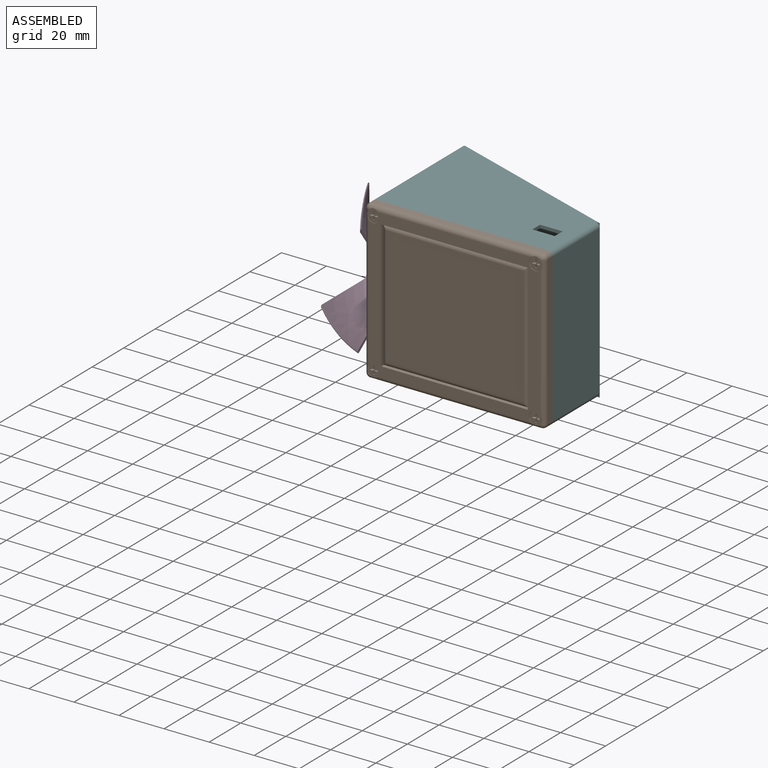
[diagram: assembled view]
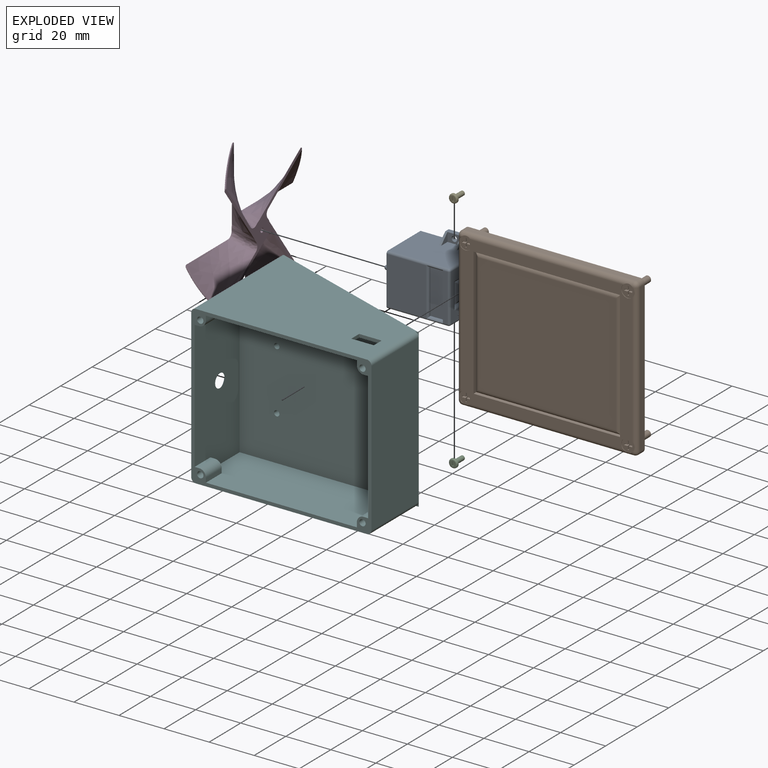
[diagram: exploded view]
GUIDED TOUR — MATED ASSEMBLY WITH SUBASSEMBLIES (Onshape document ab6bb87379f36e90b75c5dd7, AutoMate assembly ab6bb87379f36e90b75c5dd7_9b15f9d7cb4c715bf9bfc902_723ae6bca913845a0ec390ba_default)

This assembly has 15 component occurrences arranged in 6 top-level units: 4 individual components plus 2 subassemblies (S0, S1). The tour has two levels: first the top level, where each subassembly is treated as one rigid unit; then each subassembly is toured internally in its own section (nesting deeper than one subassembly level is flattened into its subassembly's section).

Components are labeled P0..P14 across the whole record; subassembly units are labeled S0..S1. A mate is a constraint between two units; its type names the relative motion it leaves free:
  FASTENED — locks the two components together rigidly (no relative motion).
Axis/direction vectors are unit vectors and 'through' points are millimeter coordinates, both in the assembly's world frame.

TOP-LEVEL MATES (between units; each subassembly's internal mates are listed in its own section)
  1. FASTENED "Fastened 1": S0 <-> P9, direction (0.000, 1.000, 0.000) through (-19.87, 3.13, -12.89) mm
  2. FASTENED "Fastened 3": P5 <-> S0, direction (0.000, 1.000, 0.000) through (-19.87, 0.93, 14.11) mm
  3. FASTENED "Fastened 6": P4 <-> S0, direction (1.000, 0.000, 0.000) through (-37.87, -9.42, 0.61) mm
  4. FASTENED "Fastened 4": P3 <-> S0, direction (0.000, 1.000, 0.000) through (-19.87, 0.93, -12.89) mm

TOP-LEVEL ASSEMBLY ORDER
  1. S0 — the base component [order heuristic]
  2. S1 — core [order heuristic]
  3. P9 — core [order heuristic]
  4. P4 [order verified]
  5. P5 [order verified]
  6. P3 [order verified]
(P4 verified with a relaxed clearance tolerance: the source model stores slight part interference there.)
Order-tag legend:
  [order verified] — this step's position reverses a verified removal order: the component was checked to insert without passing through the ones already placed.
  [order heuristic] — the first 3 components form the assembly's core: parts whose collision-free extraction could not be verified, listed in mate-graph order.

Of the 15 component occurrences, 7 carry the full construction recipe — the FeatureScript program that regenerates the part's solid from scratch; the rest are supplied as boundary geometry only. Each toured unit is shown spotlighted twice — assembled, then exploded with a leader line back to its socket (green = recipe-attached component, orange = geometry-only, blue = subassembly unit; the rest desaturated gray).
NOTE — document 2 of 2 of this assembly tour. The two overview renders and the header above are repeated from document 1; the component sections below continue where the previous document stopped.
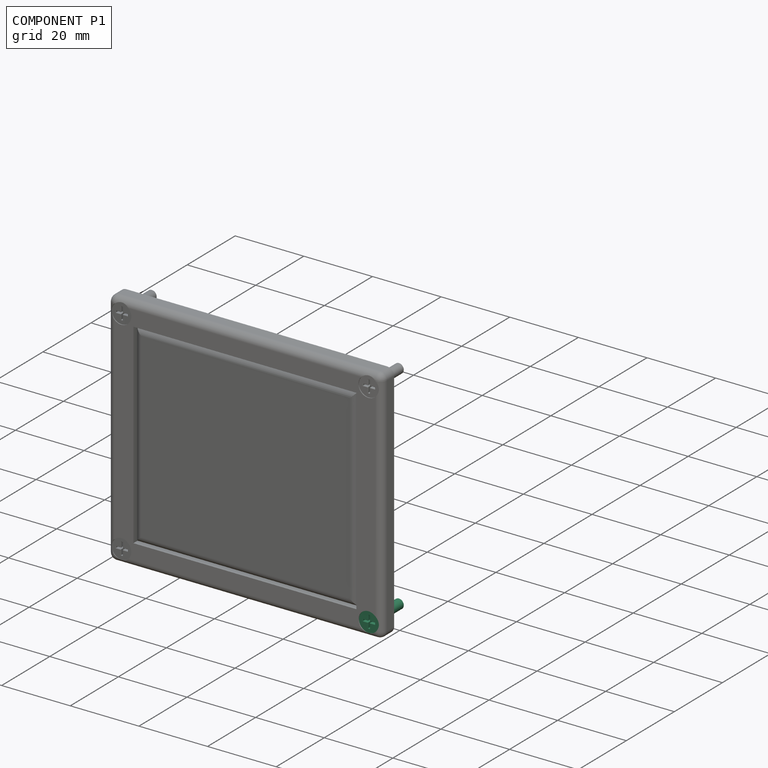
[diagram: component P1 — assembled]
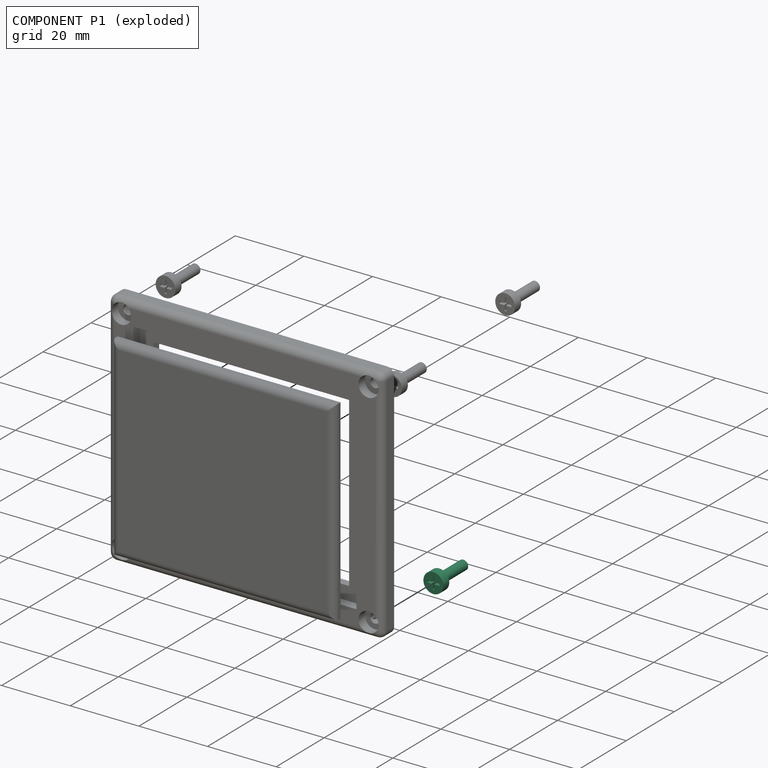
[diagram: component P1 — exploded]
COMPONENT P1 — recipe-attached (CADFS 00138052, mesh-verified: the recipe's output STEP matches this component's geometry to below the mesh-comparison resolution (tessellation chordal tolerance ~0.0224 mm)).
Held by: FASTENED mate "Fastened 4" to P6; FASTENED mate "Fastened 4" to P6.
Construction recipe (FeatureScript — the CAD program that rebuilds this solid; sketch coordinates are in the units given by the * unit suffixes, e.g. mm):

FeatureScript 2581;
import(path : "onshape/std/geometry.fs", version : "2581.0");
import(path : "onshape/std/common.fs", version : "2581.0");
const mm = millimeter;
const VERTEX = EntityType.VERTEX;
const EDGE = EntityType.EDGE;
const FACE = EntityType.FACE;
const BODY = EntityType.BODY;
function v(x, y){return vector(x, y);}
function OD(order){return orderDisambiguation(order);}
function OSD(set){return originalSetDisambiguation(set);}
function TD(topology){return topologyDisambiguation(topology);}
function TDD(query){return trueDependencyDisambiguation(query);}
function sQuery(a, b, c) {return sketchEntityQuery(a, b, c);}

annotation { "Feature Type Name" : "Feature", "Feature Type Description" : "" }
export const myFeature = defineFeature(function(context is Context, id is Id, definition is map)
    precondition{}
    {
        {
            var Q0;
            Q0=qCreatedBy(makeId("Front.planeOp"),FACE);
            var sketch = newSketch(context, id + "F0", { "sketchPlane" : qUnion([Q0])});
            skCircle(sketch, "E0", {"center": v(0, 0) * mm, "radius": 1.4 * mm});
            skSolve(sketch);
        }
        {
            var Q0;
            Q0=makeQuery(id+"F0.imprint","IMPRINT",FACE,{"disambiguationData":[TD([[makeQuery(id+"F0.imprint","IMPRINT",EDGE,{"derivedFrom":sQuery(id+"F0.wireOp",EDGE,"E0")}),1.0]])]});
            extrude(context, id + "F1", {"entities" : qUnion([Q0]), "depth" : 10 * mm});
        }
        {
            var Q0;
            Q0=makeQuery(id+"F1.opExtrude","CAP_FACE",FACE,{"disambiguationData":[OSD([sQuery(id+"F0.wireOp",EDGE,"E0")])],"isStart":false});
            cPlane(context, id + "F2", {"entities" : qUnion([Q0]), "cplaneType" : CPlaneType.OFFSET, "offset" : 0 * mm, "width" : 150 * mm, "height" : 150 * mm});
        }
        {
            var Q0;
            Q0=qCreatedBy(id+"F2.planeOp",FACE);
            var sketch = newSketch(context, id + "F3", { "sketchPlane" : qUnion([Q0])});
            skCircle(sketch, "E1", {"center": v(0, 0) * mm, "radius": 2.9 * mm});
            skLineSegment(sketch, "E2.bottom", {"start": v(0.25, -1.75) * mm, "end": v(-0.25, -1.75) * mm});
            skLineSegment(sketch, "E2.top", {"start": v(0.25, 1.75) * mm, "end": v(-0.25, 1.75) * mm});
            skLineSegment(sketch, "E2.left", {"start": v(0.25, -1.75) * mm, "end": v(0.25, 1.75) * mm});
            skLineSegment(sketch, "E2.right", {"start": v(-0.25, -1.75) * mm, "end": v(-0.25, 1.75) * mm});
            skLineSegment(sketch, "E3.bottom", {"start": v(1.75, -0.25) * mm, "end": v(-1.75, -0.25) * mm});
            skLineSegment(sketch, "E3.top", {"start": v(1.75, 0.25) * mm, "end": v(-1.75, 0.25) * mm});
            skLineSegment(sketch, "E3.left", {"start": v(1.75, -0.25) * mm, "end": v(1.75, 0.25) * mm});
            skLineSegment(sketch, "E3.right", {"start": v(-1.75, -0.25) * mm, "end": v(-1.75, 0.25) * mm});
            skSolve(sketch);
        }
        {
            var Q0;
            Q0=makeQuery(id+"F3.imprint","IMPRINT",FACE,{"disambiguationData":[TD([[makeQuery(id+"F3.imprint","IMPRINT",EDGE,{"derivedFrom":sQuery(id+"F3.wireOp",EDGE,"E1")}),1.0]])]});
            extrude(context, id + "F4", {"entities" : qUnion([Q0]), "operationType" : NewBodyOperationType.ADD, "depth" : 2.5 * mm});
        }
        {
            var Q0;
            {var subQ0=sQuery(id+"F3.wireOp",EDGE,"E3.bottom");var subQ1=sQuery(id+"F3.wireOp",EDGE,"E2.left");var subQ2=makeQuery(id+"F3.imprint","INTERSECT",VERTEX,{"derivedFrom":[subQ1,subQ0]});Q0=makeQuery(id+"F3.imprint","IMPRINT",FACE,{"disambiguationData":[TD([[makeQuery(id+"F3.imprint","IMPRINT",EDGE,{"disambiguationData":[TD([[subQ2,-1.0]])],"derivedFrom":subQ1}),1.0]])]});}
            var Q1;
            {var subQ5=sQuery(id+"F3.wireOp",EDGE,"E3.right");Q1=makeQuery(id+"F3.imprint","IMPRINT",FACE,{"disambiguationData":[TD([[makeQuery(id+"F3.imprint","IMPRINT",EDGE,{"derivedFrom":subQ5}),-1.0]])]});}
            var Q2;
            {var subQ0=sQuery(id+"F3.wireOp",EDGE,"E2.bottom");Q2=makeQuery(id+"F3.imprint","IMPRINT",FACE,{"disambiguationData":[TD([[makeQuery(id+"F3.imprint","IMPRINT",EDGE,{"derivedFrom":subQ0}),-1.0]])]});}
            var Q3;
            {var subQ5=sQuery(id+"F3.wireOp",EDGE,"E3.left");Q3=makeQuery(id+"F3.imprint","IMPRINT",FACE,{"disambiguationData":[TD([[makeQuery(id+"F3.imprint","IMPRINT",EDGE,{"derivedFrom":subQ5}),1.0]])]});}
            var Q4;
            {var subQ0=sQuery(id+"F3.wireOp",EDGE,"E2.top");Q4=makeQuery(id+"F3.imprint","IMPRINT",FACE,{"disambiguationData":[TD([[makeQuery(id+"F3.imprint","IMPRINT",EDGE,{"derivedFrom":subQ0}),1.0]])]});}
            extrude(context, id + "F5", {"entities" : qUnion([Q0, Q1, Q2, Q3, Q4]), "operationType" : NewBodyOperationType.ADD, "depth" : 0.5 * mm});
        }
        {
            var Q0;
            {var subQ0=sQuery(id+"F3.wireOp",EDGE,"E2.right");Q0=makeQuery(id+"F4.opExtrude","CAP_EDGE",EDGE,{"disambiguationData":[OSD([subQ0]),TDD([makeQuery(id+"F3.imprint","IMPRINT",EDGE,{"disambiguationData":[TD([[makeQuery(id+"F3.imprint","INTERSECT",VERTEX,{"derivedFrom":[sQuery(id+"F3.wireOp",EDGE,"E2.top"),subQ0]}),1.0]])],"derivedFrom":subQ0})])],"isStart":false});}
            var Q1;
            {var subQ0=sQuery(id+"F3.wireOp",EDGE,"E3.top");Q1=makeQuery(id+"F4.opExtrude","CAP_EDGE",EDGE,{"disambiguationData":[OSD([subQ0]),TDD([makeQuery(id+"F3.imprint","IMPRINT",EDGE,{"disambiguationData":[TD([[makeQuery(id+"F3.imprint","INTERSECT",VERTEX,{"derivedFrom":[subQ0,sQuery(id+"F3.wireOp",EDGE,"E3.right")]}),1.0]])],"derivedFrom":subQ0})])],"isStart":false});}
            var Q2;
            {var subQ0=sQuery(id+"F3.wireOp",EDGE,"E3.bottom");Q2=makeQuery(id+"F4.opExtrude","CAP_EDGE",EDGE,{"disambiguationData":[OSD([subQ0]),TDD([makeQuery(id+"F3.imprint","IMPRINT",EDGE,{"disambiguationData":[TD([[makeQuery(id+"F3.imprint","INTERSECT",VERTEX,{"derivedFrom":[subQ0,sQuery(id+"F3.wireOp",EDGE,"E3.right")]}),1.0]])],"derivedFrom":subQ0})])],"isStart":false});}
            var Q3;
            {var subQ0=sQuery(id+"F3.wireOp",EDGE,"E2.right");Q3=makeQuery(id+"F4.opExtrude","CAP_EDGE",EDGE,{"disambiguationData":[OSD([subQ0]),TDD([makeQuery(id+"F3.imprint","IMPRINT",EDGE,{"disambiguationData":[TD([[makeQuery(id+"F3.imprint","INTERSECT",VERTEX,{"derivedFrom":[sQuery(id+"F3.wireOp",EDGE,"E2.bottom"),subQ0]}),-1.0]])],"derivedFrom":subQ0})])],"isStart":false});}
            var Q4;
            Q4=makeQuery(id+"F4.opExtrude","CAP_EDGE",EDGE,{"disambiguationData":[OSD([sQuery(id+"F3.wireOp",EDGE,"E3.right")])],"isStart":false});
            var Q5;
            {var subQ0=sQuery(id+"F3.wireOp",EDGE,"E2.left");Q5=makeQuery(id+"F4.opExtrude","CAP_EDGE",EDGE,{"disambiguationData":[OSD([subQ0]),TDD([makeQuery(id+"F3.imprint","IMPRINT",EDGE,{"disambiguationData":[TD([[makeQuery(id+"F3.imprint","INTERSECT",VERTEX,{"derivedFrom":[sQuery(id+"F3.wireOp",EDGE,"E2.bottom"),subQ0]}),-1.0]])],"derivedFrom":subQ0})])],"isStart":false});}
            var Q6;
            Q6=makeQuery(id+"F4.opExtrude","CAP_EDGE",EDGE,{"disambiguationData":[OSD([sQuery(id+"F3.wireOp",EDGE,"E2.bottom")])],"isStart":false});
            var Q7;
            {var subQ0=sQuery(id+"F3.wireOp",EDGE,"E3.bottom");Q7=makeQuery(id+"F4.opExtrude","CAP_EDGE",EDGE,{"disambiguationData":[OSD([subQ0]),TDD([makeQuery(id+"F3.imprint","IMPRINT",EDGE,{"disambiguationData":[TD([[makeQuery(id+"F3.imprint","INTERSECT",VERTEX,{"derivedFrom":[subQ0,sQuery(id+"F3.wireOp",EDGE,"E3.left")]}),-1.0]])],"derivedFrom":subQ0})])],"isStart":false});}
            var Q8;
            Q8=makeQuery(id+"F4.opExtrude","CAP_EDGE",EDGE,{"disambiguationData":[OSD([sQuery(id+"F3.wireOp",EDGE,"E3.left")])],"isStart":false});
            var Q9;
            {var subQ0=sQuery(id+"F3.wireOp",EDGE,"E2.left");Q9=makeQuery(id+"F4.opExtrude","CAP_EDGE",EDGE,{"disambiguationData":[OSD([subQ0]),TDD([makeQuery(id+"F3.imprint","IMPRINT",EDGE,{"disambiguationData":[TD([[makeQuery(id+"F3.imprint","INTERSECT",VERTEX,{"derivedFrom":[sQuery(id+"F3.wireOp",EDGE,"E2.top"),subQ0]}),1.0]])],"derivedFrom":subQ0})])],"isStart":false});}
            var Q10;
            Q10=makeQuery(id+"F4.opExtrude","CAP_EDGE",EDGE,{"disambiguationData":[OSD([sQuery(id+"F3.wireOp",EDGE,"E2.top")])],"isStart":false});
            var Q11;
            {var subQ0=sQuery(id+"F3.wireOp",EDGE,"E3.top");Q11=makeQuery(id+"F4.opExtrude","CAP_EDGE",EDGE,{"disambiguationData":[OSD([subQ0]),TDD([makeQuery(id+"F3.imprint","IMPRINT",EDGE,{"disambiguationData":[TD([[makeQuery(id+"F3.imprint","INTERSECT",VERTEX,{"derivedFrom":[subQ0,sQuery(id+"F3.wireOp",EDGE,"E3.left")]}),-1.0]])],"derivedFrom":subQ0})])],"isStart":false});}
            fillet(context, id + "F6", {"entities" : qUnion([Q0, Q1, Q2, Q3, Q4, Q5, Q6, Q7, Q8, Q9, Q10, Q11]), "radius" : 0.1 * mm, "tangentPropagation" : true, "allowEdgeOverflow" : false});
        }
    });
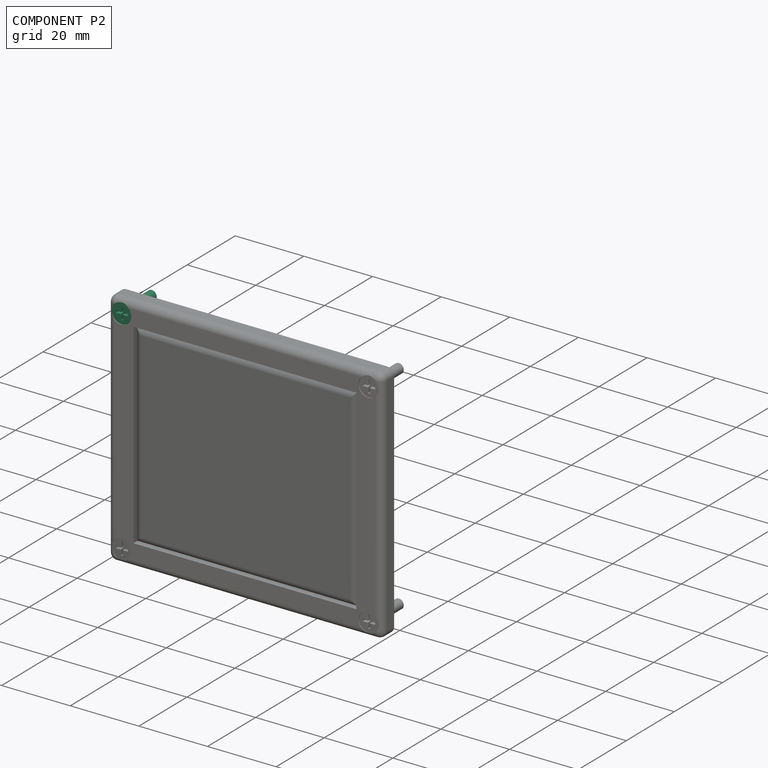
[diagram: component P2 — assembled]
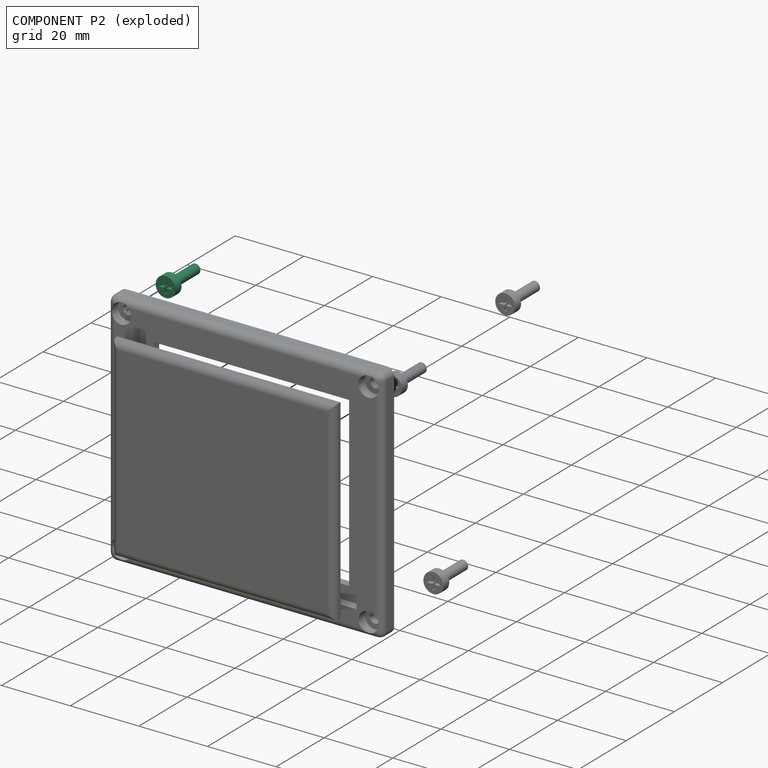
[diagram: component P2 — exploded]
COMPONENT P2 — same part as P1 (CADFS 00138052); its construction recipe is shown at P1.
Held by: FASTENED mate "Fastened 5" to P6; FASTENED mate "Fastened 5" to P6.
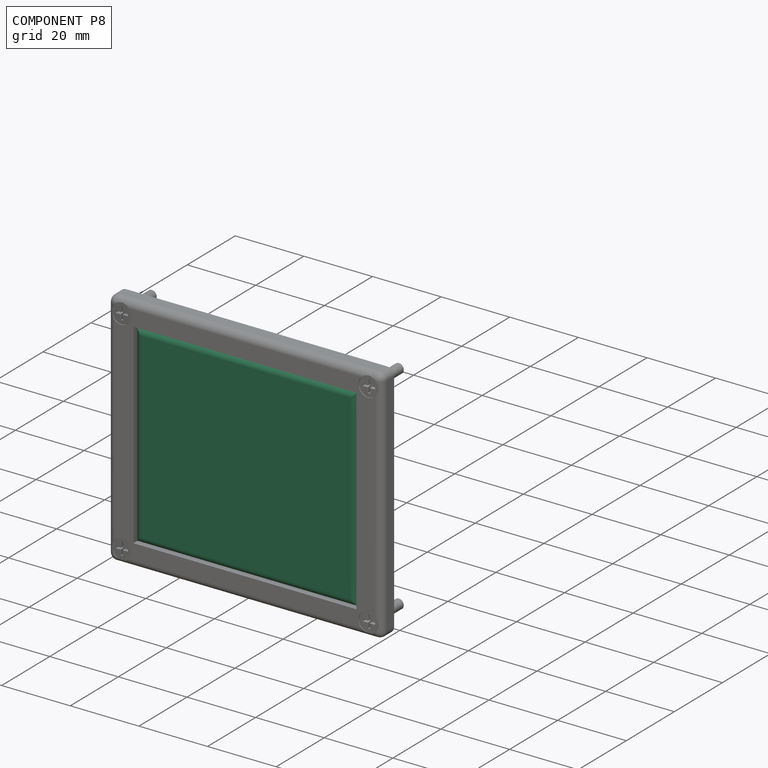
[diagram: component P8 — assembled]
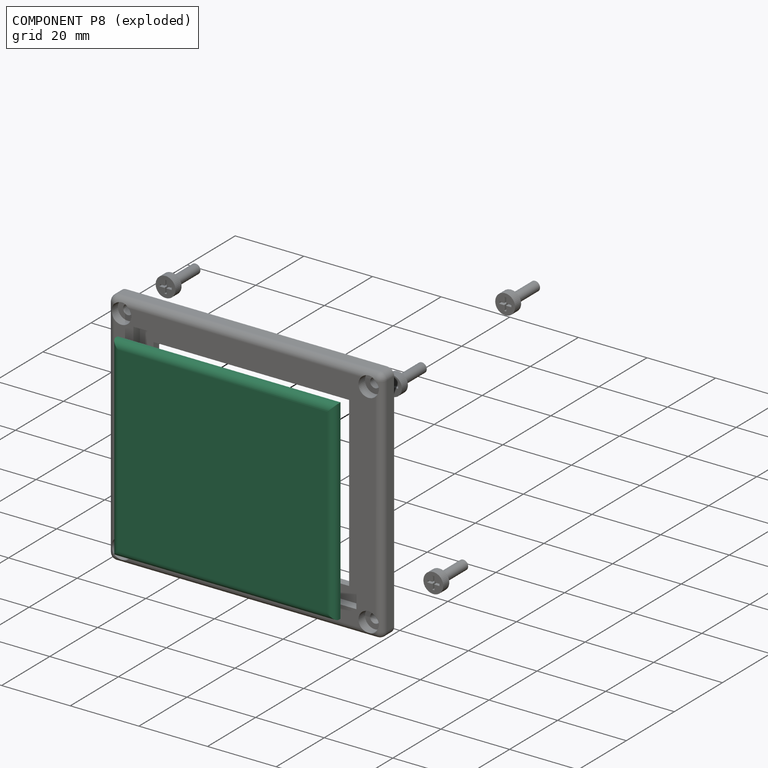
[diagram: component P8 — exploded]
COMPONENT P8 — recipe-attached (CADFS 00138053, mesh-verified: the recipe's output STEP matches this component's geometry to below the mesh-comparison resolution (tessellation chordal tolerance ~0.13 mm)).
Held by: FASTENED mate "Fastened 1" to P6; FASTENED mate "Fastened 1" to P6.
Construction recipe (FeatureScript — the CAD program that rebuilds this solid; sketch coordinates are in the units given by the * unit suffixes, e.g. mm):

FeatureScript 2581;
import(path : "onshape/std/geometry.fs", version : "2581.0");
import(path : "onshape/std/common.fs", version : "2581.0");
const mm = millimeter;
const VERTEX = EntityType.VERTEX;
const EDGE = EntityType.EDGE;
const FACE = EntityType.FACE;
const BODY = EntityType.BODY;
function v(x, y){return vector(x, y);}
function OD(order){return orderDisambiguation(order);}
function OSD(set){return originalSetDisambiguation(set);}
function TD(topology){return topologyDisambiguation(topology);}
function TDD(query){return trueDependencyDisambiguation(query);}
function sQuery(a, b, c) {return sketchEntityQuery(a, b, c);}

annotation { "Feature Type Name" : "Feature", "Feature Type Description" : "" }
export const myFeature = defineFeature(function(context is Context, id is Id, definition is map)
    precondition{}
    {
        {
            var Q0;
            Q0=qCreatedBy(makeId("Front.planeOp"),FACE);
            var sketch = newSketch(context, id + "F0", { "sketchPlane" : qUnion([Q0])});
            skLineSegment(sketch, "E0", {"start": v(-27.46, 31.5) * mm, "end": v(-27.46, -33.5) * mm});
            skLineSegment(sketch, "E1", {"start": v(-27.46, -33.5) * mm, "end": v(29.54, -33.5) * mm});
            skLineSegment(sketch, "E2", {"start": v(29.54, -33.5) * mm, "end": v(29.54, 31.5) * mm});
            skLineSegment(sketch, "E3", {"start": v(29.54, 31.5) * mm, "end": v(-27.46, 31.5) * mm});
            skSolve(sketch);
        }
        {
            var Q0;
            Q0=makeQuery(id+"F0.imprint","IMPRINT",FACE,{"disambiguationData":[TD([[makeQuery(id+"F0.imprint","IMPRINT",EDGE,{"derivedFrom":sQuery(id+"F0.wireOp",EDGE,"E0")}),1.0]])]});
            extrude(context, id + "F1", {"entities" : qUnion([Q0]), "depth" : 2.7 * mm});
        }
        {
            var Q0;
            Q0=makeQuery(id+"F1.opExtrude","CAP_EDGE",EDGE,{"disambiguationData":[OSD([sQuery(id+"F0.wireOp",EDGE,"E2")])],"isStart":false});
            var Q1;
            Q1=makeQuery(id+"F1.opExtrude","CAP_EDGE",EDGE,{"disambiguationData":[OSD([sQuery(id+"F0.wireOp",EDGE,"E1")])],"isStart":false});
            var Q2;
            Q2=makeQuery(id+"F1.opExtrude","CAP_EDGE",EDGE,{"disambiguationData":[OSD([sQuery(id+"F0.wireOp",EDGE,"E0")])],"isStart":false});
            var Q3;
            Q3=makeQuery(id+"F1.opExtrude","CAP_EDGE",EDGE,{"disambiguationData":[OSD([sQuery(id+"F0.wireOp",EDGE,"E3")])],"isStart":false});
            fillet(context, id + "F2", {"entities" : qUnion([Q0, Q1, Q2, Q3]), "radius" : 2 * mm, "tangentPropagation" : true, "allowEdgeOverflow" : false});
        }
    });
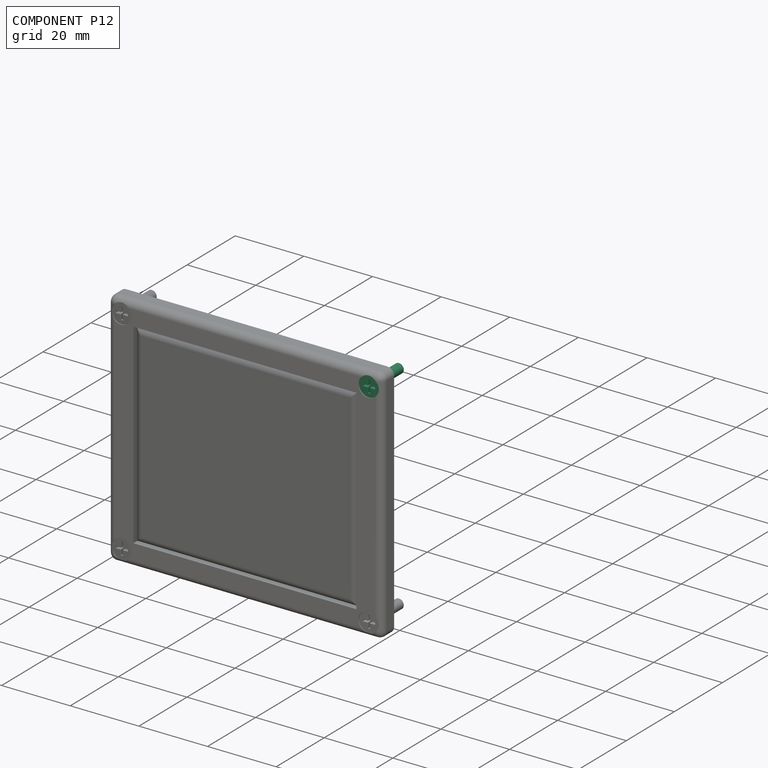
[diagram: component P12 — assembled]
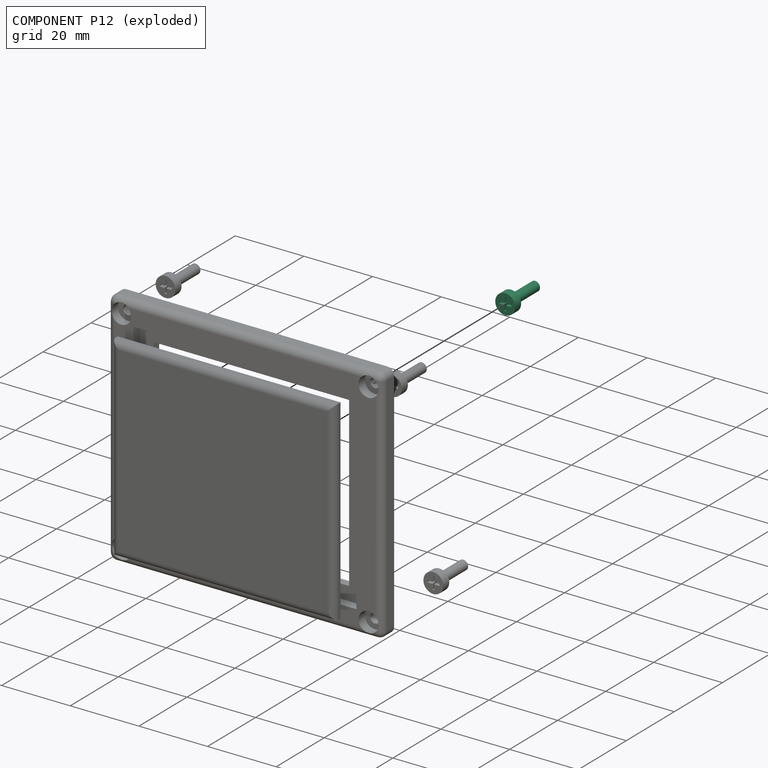
[diagram: component P12 — exploded]
COMPONENT P12 — same part as P1 (CADFS 00138052); its construction recipe is shown at P1.
Held by: FASTENED mate "Fastened 2" to P6; FASTENED mate "Fastened 2" to P6.
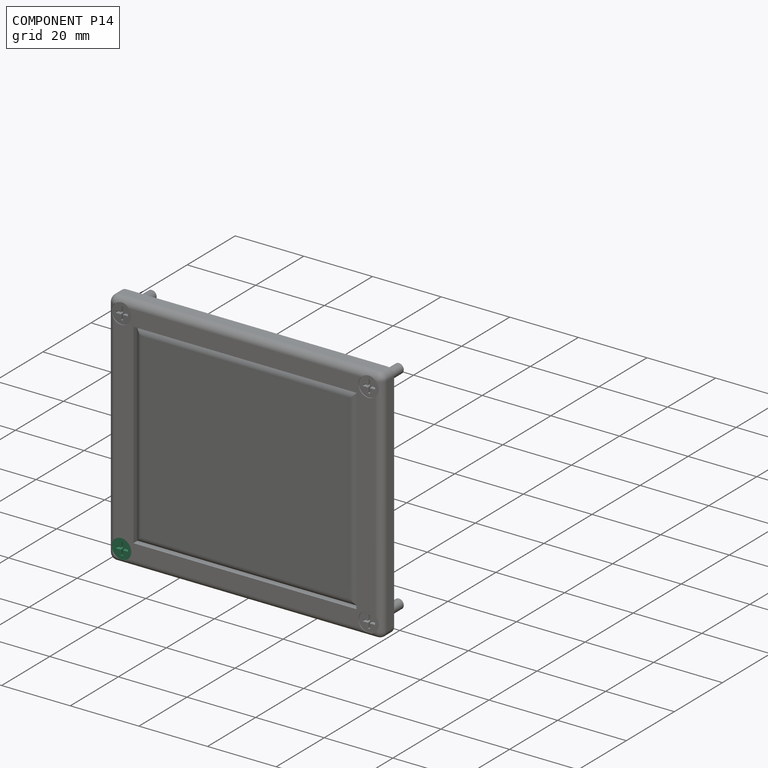
[diagram: component P14 — assembled]
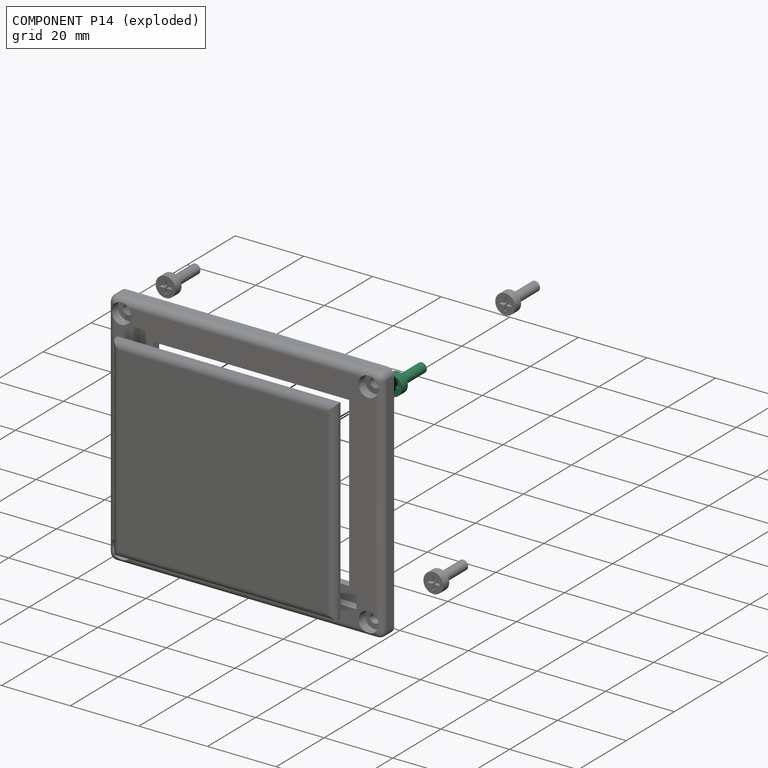
[diagram: component P14 — exploded]
COMPONENT P14 — same part as P1 (CADFS 00138052); its construction recipe is shown at P1.
Held by: FASTENED mate "Fastened 3" to P6; FASTENED mate "Fastened 3" to P6.
PROVENANCE & LICENSES
Assembly (occurrences, transforms, mates, per-part STEP geometry): AutoMate dataset, Zenodo record 7776208, CC0.
Construction recipes: CADFS (HuggingFace VladPyatov/CADFS, CC-BY-4.0, layered over the ABC dataset), FeatureScript reconstruction programs keyed by ABC model id.
Join: ABC meta listings map ABC model id -> Onshape documentId; within a shared document, parts are matched by geometric signature (bounding-box dims + volume at 0.1% relative tolerance, exact B-rep face/solid counts).
Verification: 7 of this assembly's 15 components carry a recipe attachment, and every attachment is mesh-verified: the CADFS STEP and the AutoMate member STEP were compared as meshes in their shared local frame (symmetric sampled-point-to-mesh distance); worst across the 7 attachments: below the mesh-comparison resolution (tessellation chordal tolerance ~0.16 mm) on a 106 mm part.
Renders: orthographic iso camera (az 35 / el 25); the floor grid conveys scale (grid pitch printed in each image; no ruler). In the exploded view each component is displaced by its stored offset vector: the offsets alone carry the explosion direction (mate normal/axis signs are not orientation cues and do not encode it), and separation distances are assigned per mate-chain, not proportionally to assembly-order depth.
